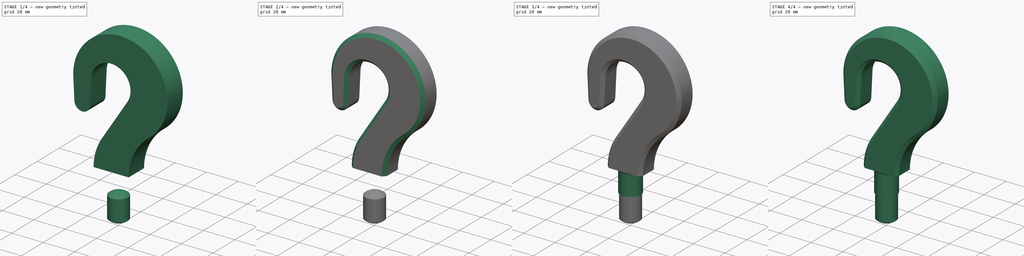
[diagram: build sequence overview — one tinted view per stage of 4, left to right]
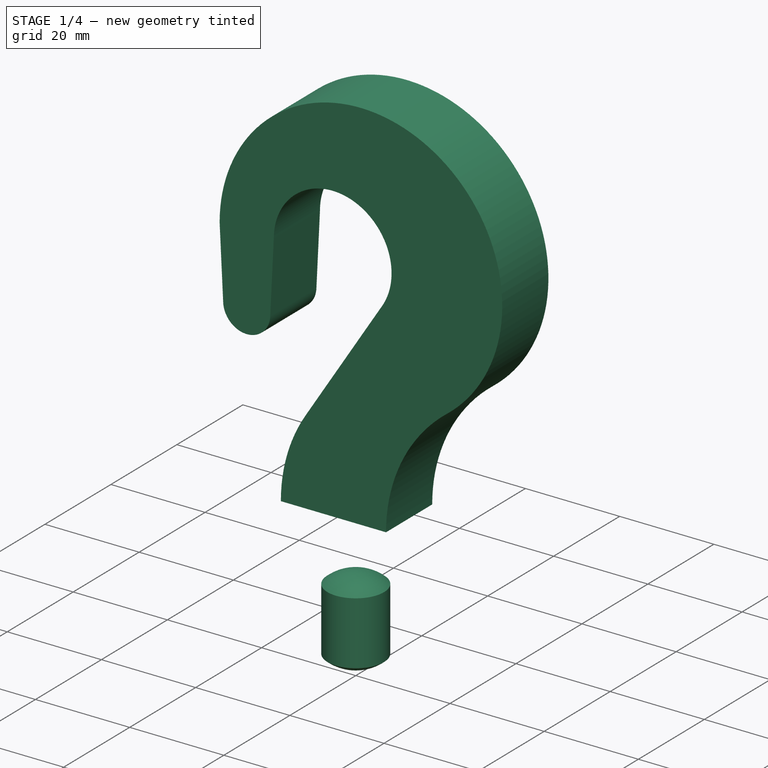
[diagram: stage 1 of 4 — iso view after this stage's code; geometry added in this stage tinted green]
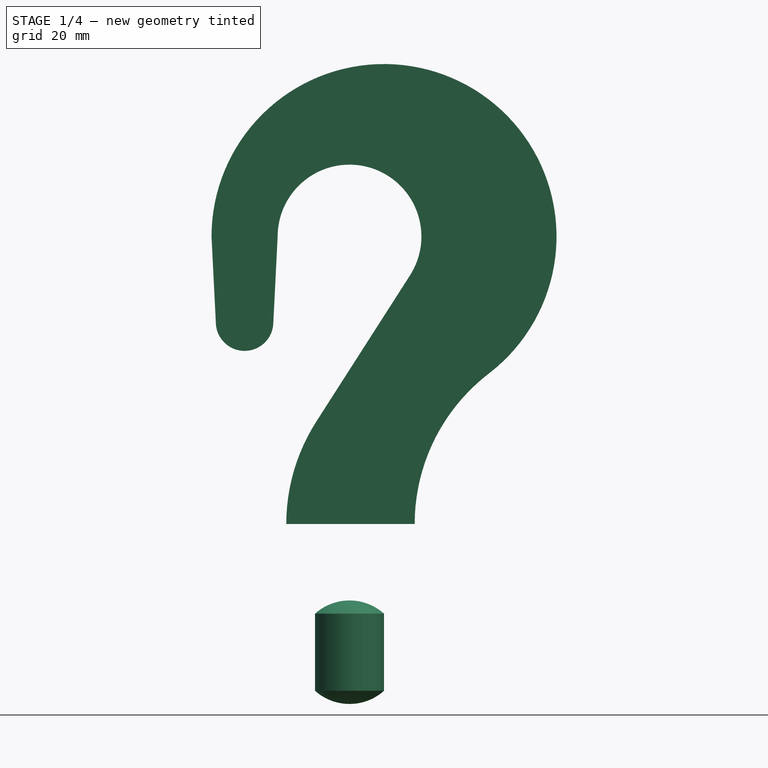
[diagram: stage 1 of 4 — front view after this stage's code; geometry added in this stage tinted green]
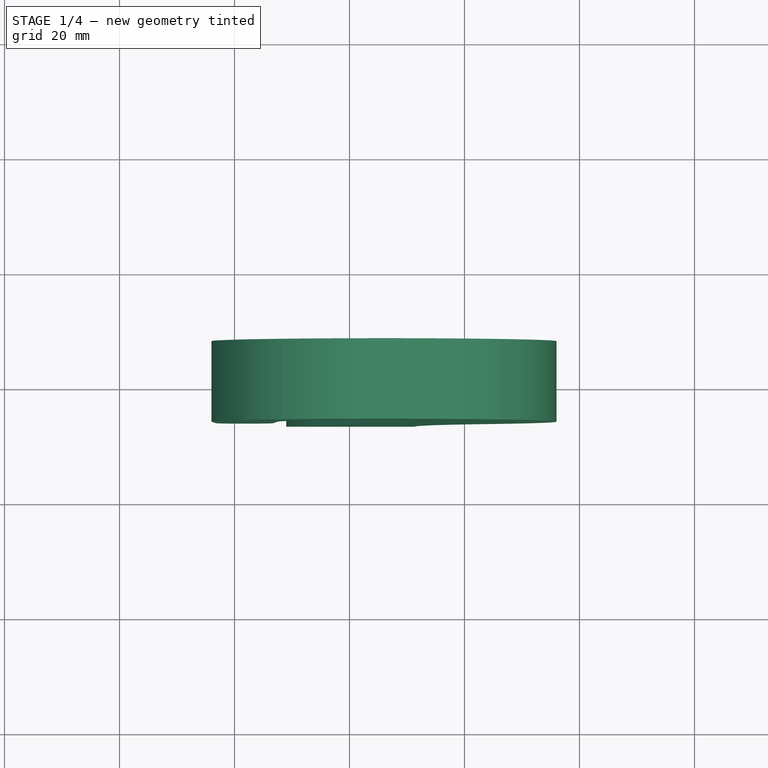
[diagram: stage 1 of 4 — top view after this stage's code; geometry added in this stage tinted green]
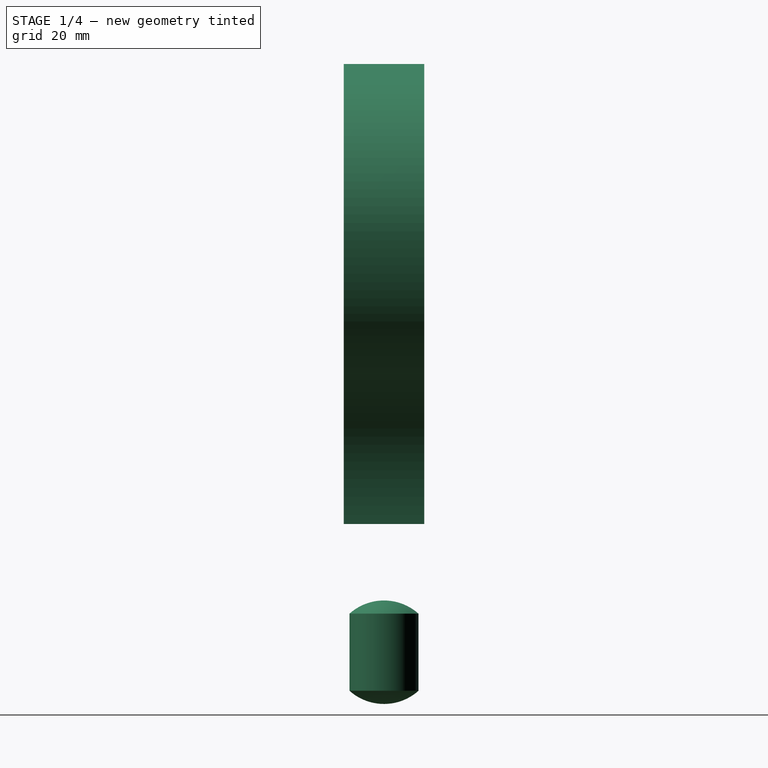
[diagram: stage 1 of 4 — right view after this stage's code; geometry added in this stage tinted green]
FCSTD DOCUMENT  (FreeCAD 0.16RUnknown)
Label: gancho
License: All rights reserved
LicenseURL: http://en.wikipedia.org/wiki/All_rights_reserved
objects: Sketcher::SketchObject×4, PartDesign::Pad×3, PartDesign::Chamfer×2, PartDesign::Fillet×2, PartDesign::Revolution×1, Part::MultiFuse×1
note: 17 computed .brp shape members not serialized (recipe doc carries the construction recipe); baked Part::Feature solids carry a one-line shape summary decoded from their .brp

FEATURE [Sketcher::SketchObject] Sketch
  Placement = pos=(0,0,0) rot=(-1,0,0;4.71239rad)
  sketch-geometry (12):
    g0: ArcOfCircle CenterX=0 CenterY=0 CenterZ=0 NormalX=0 NormalY=0 NormalZ=1 Radius=12.5 StartAngle=5.7133 EndAngle=9.42478
    g1: ArcOfCircle CenterX=-18.25 CenterY=-14.8851 CenterZ=0 NormalX=0 NormalY=0 NormalZ=1 Radius=5 StartAngle=3.16081 EndAngle=6.26397
    g2: LineSegment StartX=-12.5 StartY=0 StartZ=0 EndX=-13.2509 EndY=-14.9812 EndZ=0
    g3: LineSegment StartX=-24 StartY=0 StartZ=0 EndX=-23.2491 EndY=-14.9812 EndZ=0
    g4: LineSegment [constr] StartX=-18.25 StartY=3.40745 StartZ=0 EndX=-18.25 EndY=-26.7021 EndZ=0
    g5: LineSegment [constr] StartX=11.33 StartY=-50 StartZ=0 EndX=61.6107 EndY=-50 EndZ=0
    g6: ArcOfCircle CenterX=22 CenterY=-50 CenterZ=0 NormalX=0 NormalY=0 NormalZ=1 Radius=33 StartAngle=2.57171 EndAngle=3.14159
    g7: LineSegment StartX=-11 StartY=-50 StartZ=0 EndX=11.33 EndY=-50 EndZ=0
    g8: LineSegment StartX=-5.78475 StartY=-32.1953 StartZ=0 EndX=10.5245 EndY=-6.74421 EndZ=0
    g9: ArcOfCircle CenterX=6 CenterY=0 CenterZ=0 NormalX=0 NormalY=0 NormalZ=1 Radius=30 StartAngle=5.37333 EndAngle=9.42478
    g10: ArcOfCircle CenterX=44.33 CenterY=-50 CenterZ=0 NormalX=0 NormalY=0 NormalZ=1 Radius=33 StartAngle=2.23174 EndAngle=3.14159
    g11: LineSegment StartX=24.0726 StartY=-23.9493 StartZ=0 EndX=24.4158 EndY=-23.6825 EndZ=0
  constraints (37):
    c: Coincident(g0,g-1)
    c: Radius(g0) = 12.5
    c: Coincident(g0,g2)
    c: Coincident(g1,g2)
    c: Radius(g1) = 5
    c: Distance(g2) = 15
    c: Coincident(g3,g1)
    c: Distance(g3) = 15
    c: PointOnObject(g3,g-1)
    c: PointOnObject(g0,g-1)
    c: Vertical(g4)
    c: PointOnObject(g1,g4)
    c: Symmetric(g0,g3,g4)
    c: DistanceY(g5,g-1) = 50
    c: Horizontal(g5)
    c: PointOnObject(g6,g5)
    c: DistanceX(g-1,g6) = 22
    c: Radius(g6) = 33
    c: Horizontal(g7)
    c: Coincident(g7,g6)
    c: DistanceY(g7,g-1) = 50
    c: Coincident(g8,g6)
    c: Coincident(g8,g0)
    c: Tangent(g6,g8)
    c: Tangent(g8,g0)
    c: PointOnObject(g9,g-1)
    c: Coincident(g3,g9)
    c: Radius(g9) = 30
    c: DistanceX(g-1,g9) = 6
    c: PointOnObject(g10,g5)
    c: Radius(g10) = 33
    c: DistanceX(g6,g10) = 22.33
    c: Coincident(g5,g10)
    c: Coincident(g9,g11)
    c: Coincident(g10,g11)
    c: Tangent(g9,g11)
    c: Tangent(g10,g11)
FEATURE [PartDesign::Pad] Pad
  Length = 14
  Length2 = 100
  Midplane = true
  Placement = pos=(0,0,0) rot=(-1,0,0;4.71239rad)
  Sketch = -> Sketch
  Type = 0
FEATURE [Sketcher::SketchObject] Sketch003
  Placement = pos=(0,0,0) rot=(-1,0,0;4.71239rad)
  sketch-geometry (5):
    g0: LineSegment StartX=0 StartY=-63.2918 StartZ=0 EndX=0 EndY=-81.2918 EndZ=0
    g1: ArcOfCircle CenterX=0 CenterY=-72.2918 CenterZ=0 NormalX=0 NormalY=0 NormalZ=1 Radius=9 StartAngle=4.71239 EndAngle=5.44212
    g2: LineSegment [constr] StartX=-6 StartY=-79 StartZ=0 EndX=6 EndY=-79 EndZ=0
    g3: LineSegment StartX=6 StartY=-65.5836 StartZ=0 EndX=6 EndY=-79 EndZ=0
    g4: ArcOfCircle CenterX=0 CenterY=-72.2918 CenterZ=0 NormalX=0 NormalY=0 NormalZ=1 Radius=9 StartAngle=0.841069 EndAngle=1.5708
  constraints (15):
    c: PointOnObject(g0,g-2)
    c: PointOnObject(g0,g-2)
    c: PointOnObject(g1,g0)
    c: Coincident(g1,g0)
    c: Coincident(g4,g0)
    c: Radius(g1) = 9
    c: Horizontal(g2)
    c: DistanceY(g2,g-1) = 79
    c: DistanceX(g2,g3) = 12
    c: PointOnObject(g3,g1)
    c: Vertical(g3)
    c: Equal(g1,g4)
    c: Coincident(g1,g2)
    c: Coincident(g4,g3)
    c: Coincident(g1,g4)
FEATURE [PartDesign::Revolution] Revolution
  Angle = 360
  Axis = (0,0,1)
  Base = (0,0,0)
  Placement = pos=(0,0,0) rot=(-1,0,0;4.71239rad)
  ReferenceAxis = -> Sketch003 [V_Axis]
  Reversed = true
  Sketch = -> Sketch003
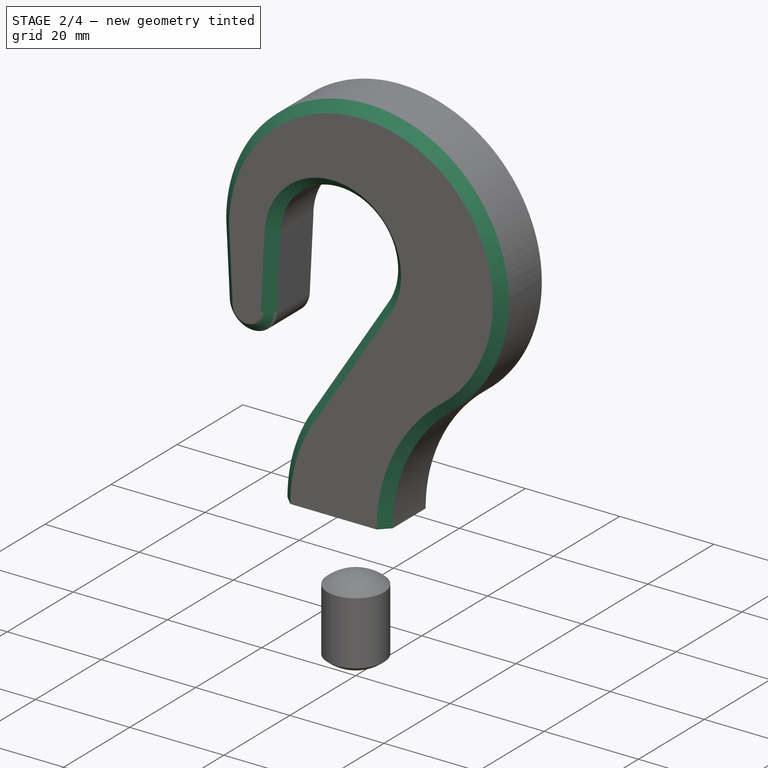
[diagram: stage 2 of 4 — iso view after this stage's code; geometry added in this stage tinted green]
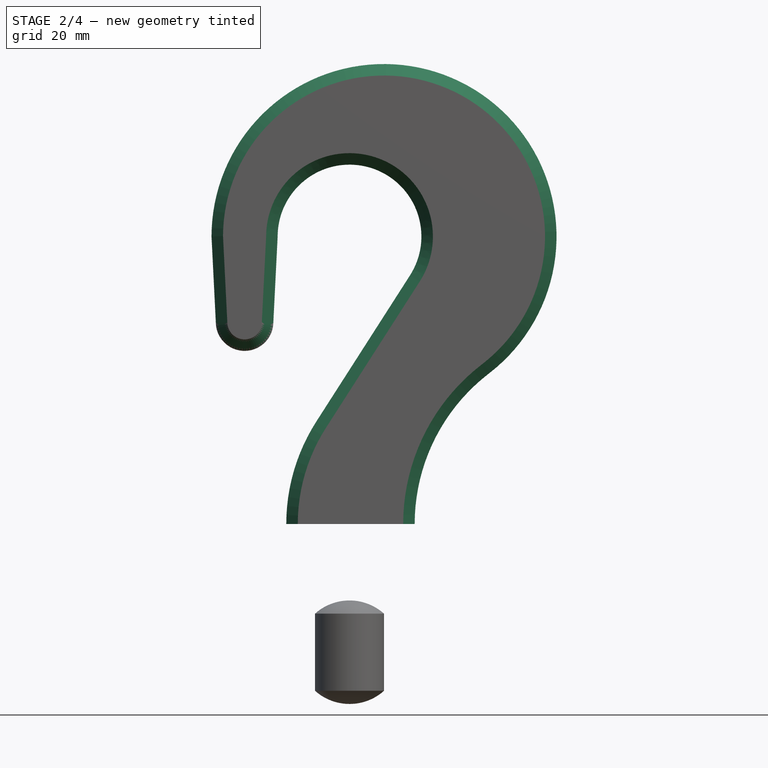
[diagram: stage 2 of 4 — front view after this stage's code; geometry added in this stage tinted green]
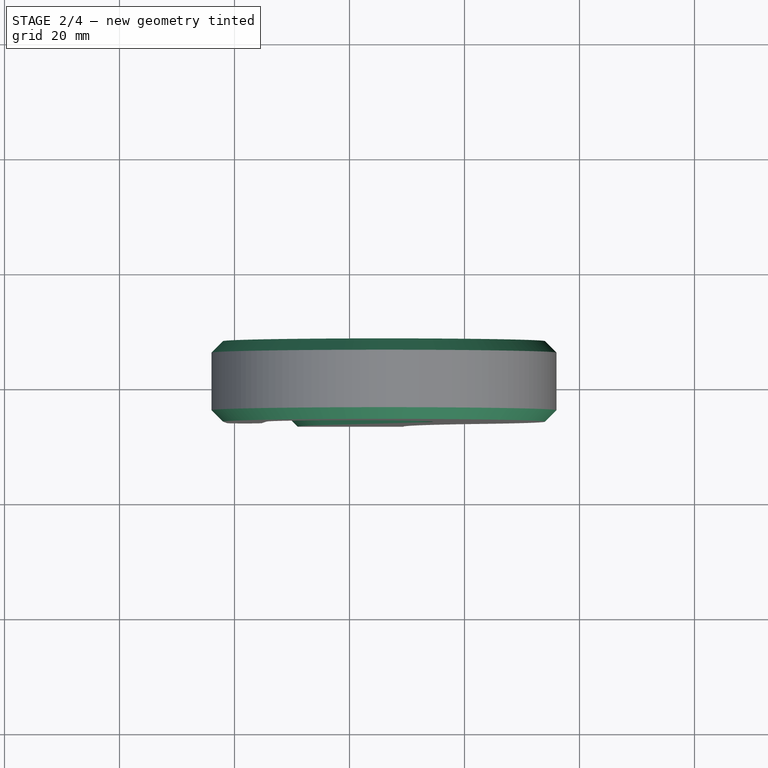
[diagram: stage 2 of 4 — top view after this stage's code; geometry added in this stage tinted green]
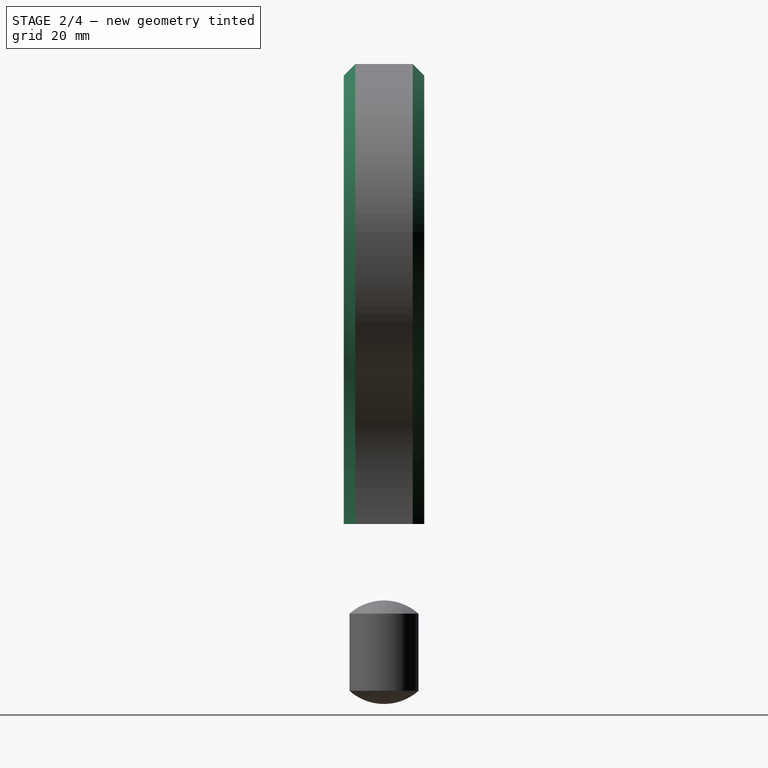
[diagram: stage 2 of 4 — right view after this stage's code; geometry added in this stage tinted green]
FEATURE [PartDesign::Chamfer] Chamfer
  Base = -> Pad [Edge7]
  Placement = pos=(0,0,0) rot=(-1,0,0;4.71239rad)
  Size = 2
FEATURE [PartDesign::Chamfer] Chamfer001
  Base = -> Chamfer [Edge15]
  Placement = pos=(0,0,0) rot=(-1,0,0;4.71239rad)
  Size = 2
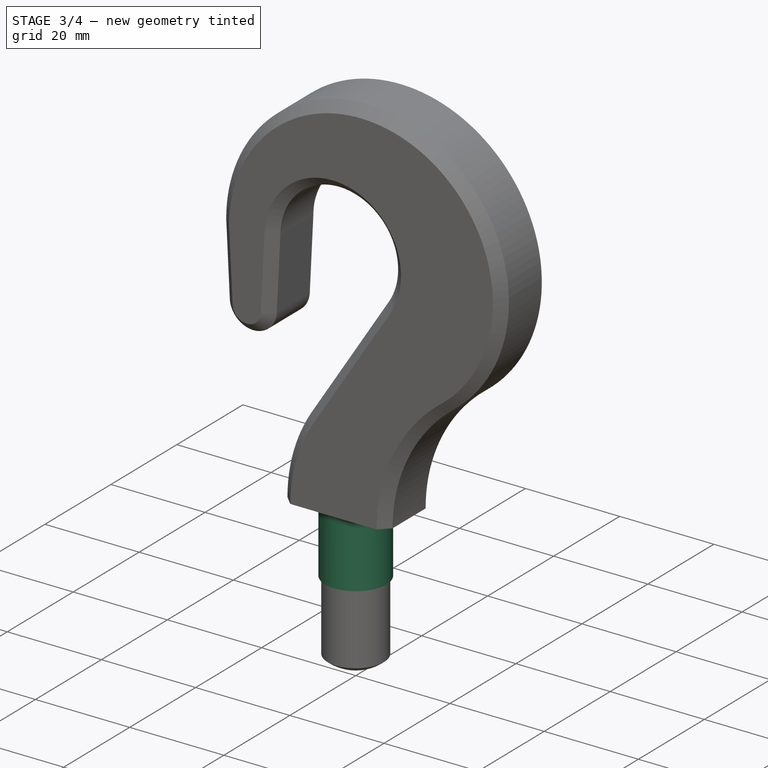
[diagram: stage 3 of 4 — iso view after this stage's code; geometry added in this stage tinted green]
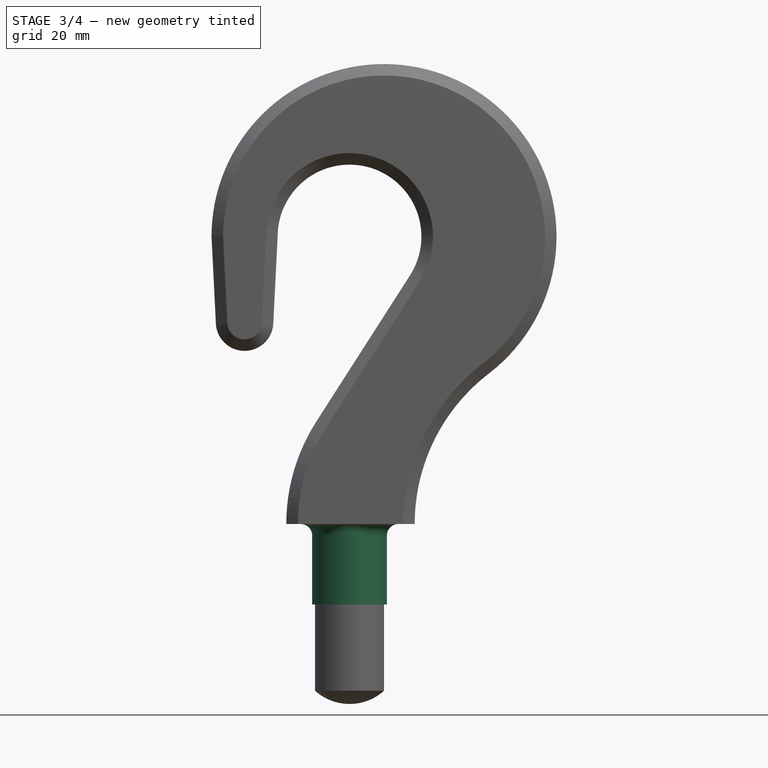
[diagram: stage 3 of 4 — front view after this stage's code; geometry added in this stage tinted green]
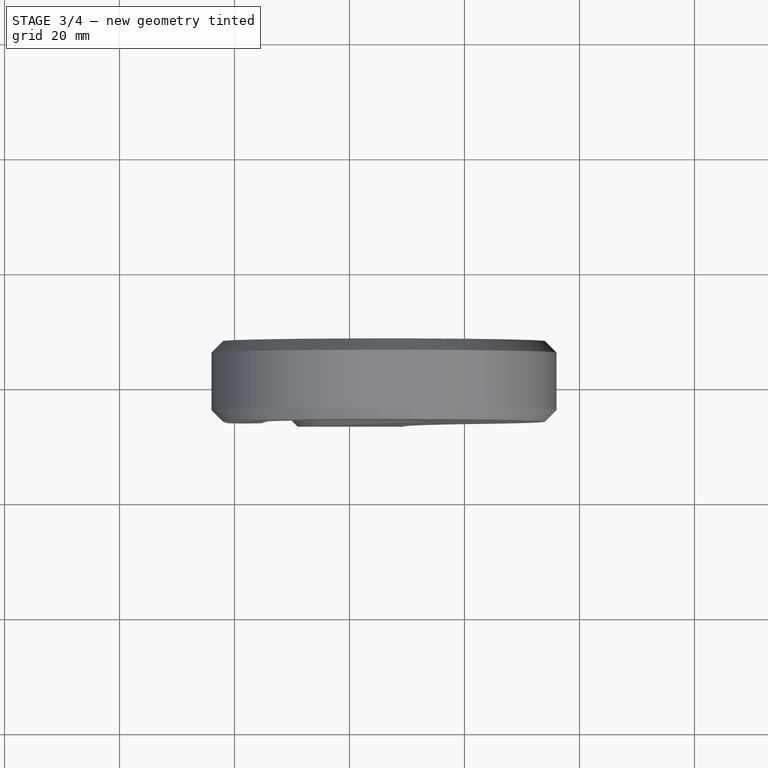
[diagram: stage 3 of 4 — top view after this stage's code; geometry added in this stage tinted green]
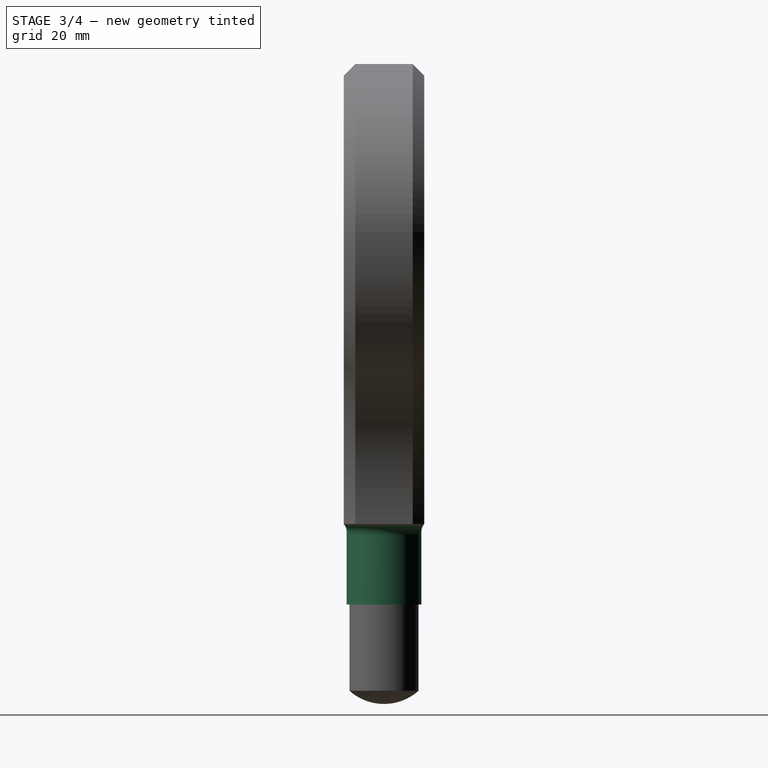
[diagram: stage 3 of 4 — right view after this stage's code; geometry added in this stage tinted green]
FEATURE [Sketcher::SketchObject] Sketch001
  Placement = pos=(0,0,-50) rot=(1,0,0;3.14159rad)
  Support = -> Chamfer001 [Face8]
  sketch-geometry (1):
    g0: Circle CenterX=0 CenterY=0 CenterZ=0 NormalX=0 NormalY=0 NormalZ=1 Radius=6.5
  constraints (2):
    c: Coincident(g0,g-1)
    c: Radius(g0) = 6.5
FEATURE [PartDesign::Pad] Pad001
  Length = 14
  Length2 = 100
  Placement = pos=(0,0,0) rot=(-1,0,0;4.71239rad)
  Sketch = -> Sketch001
  Type = 0
FEATURE [PartDesign::Fillet] Fillet
  Base = -> Pad001 [Edge2]
  Placement = pos=(0,0,0) rot=(-1,0,0;4.71239rad)
  Radius = 2
FEATURE [Sketcher::SketchObject] Sketch002
  Placement = pos=(0,0,-64) rot=(1,0,0;3.14159rad)
  Support = -> Fillet [Face3]
  sketch-geometry (1):
    g0: Circle CenterX=0 CenterY=0 CenterZ=0 NormalX=0 NormalY=0 NormalZ=1 Radius=6
  constraints (2):
    c: Coincident(g0,g-1)
    c: Radius(g0) = 6
FEATURE [PartDesign::Pad] Pad002
  Length = 15
  Length2 = 100
  Placement = pos=(0,0,0) rot=(-1,0,0;4.71239rad)
  Sketch = -> Sketch002
  Type = 0
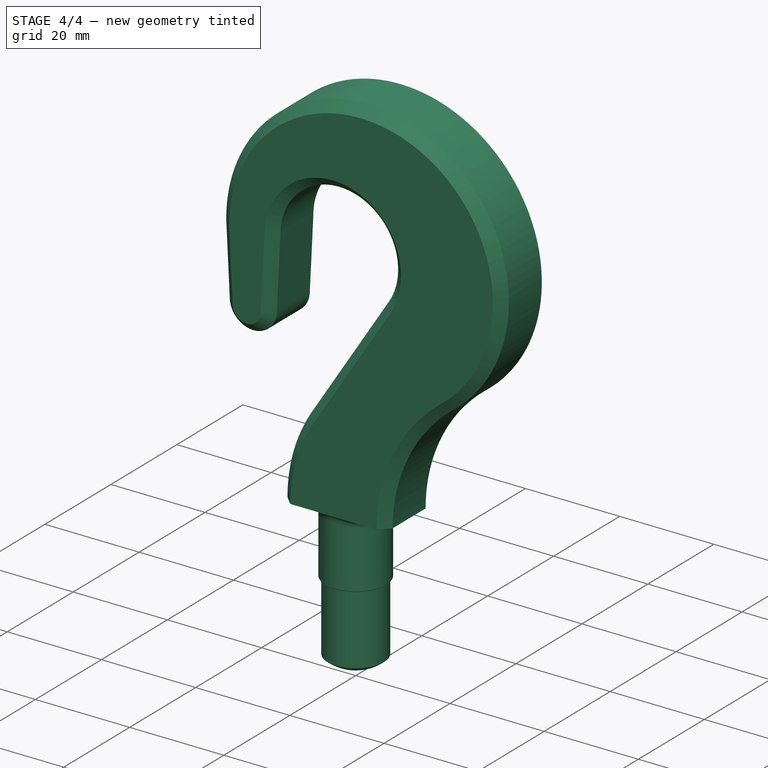
[diagram: stage 4 of 4 — iso view after this stage's code; geometry added in this stage tinted green]
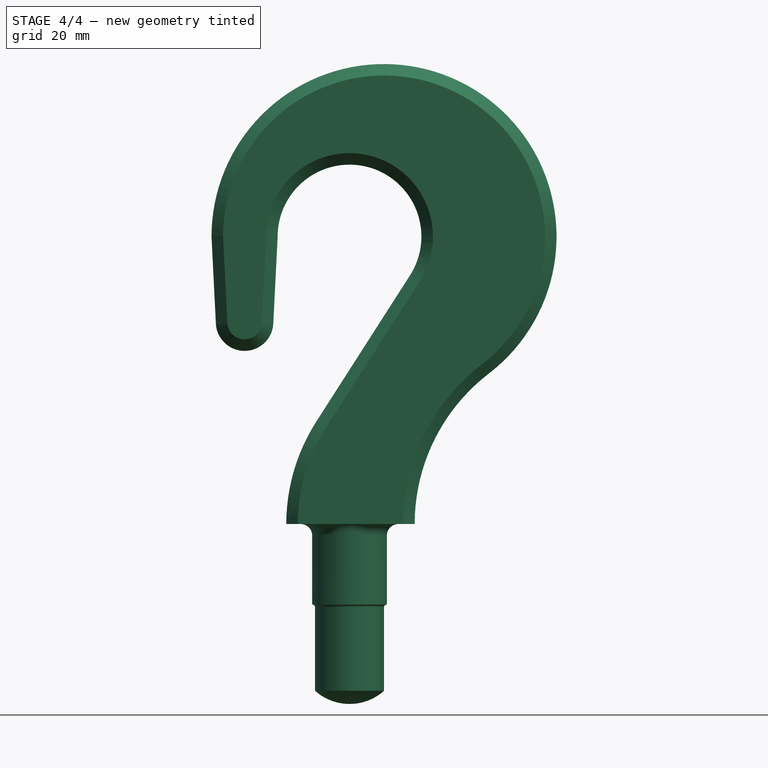
[diagram: stage 4 of 4 — front view after this stage's code; geometry added in this stage tinted green]
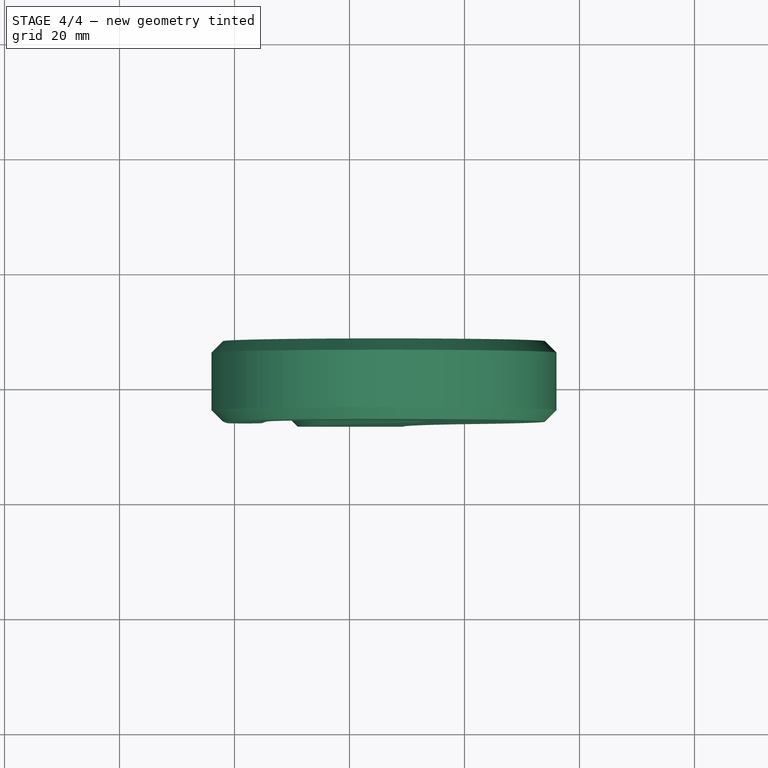
[diagram: stage 4 of 4 — top view after this stage's code; geometry added in this stage tinted green]
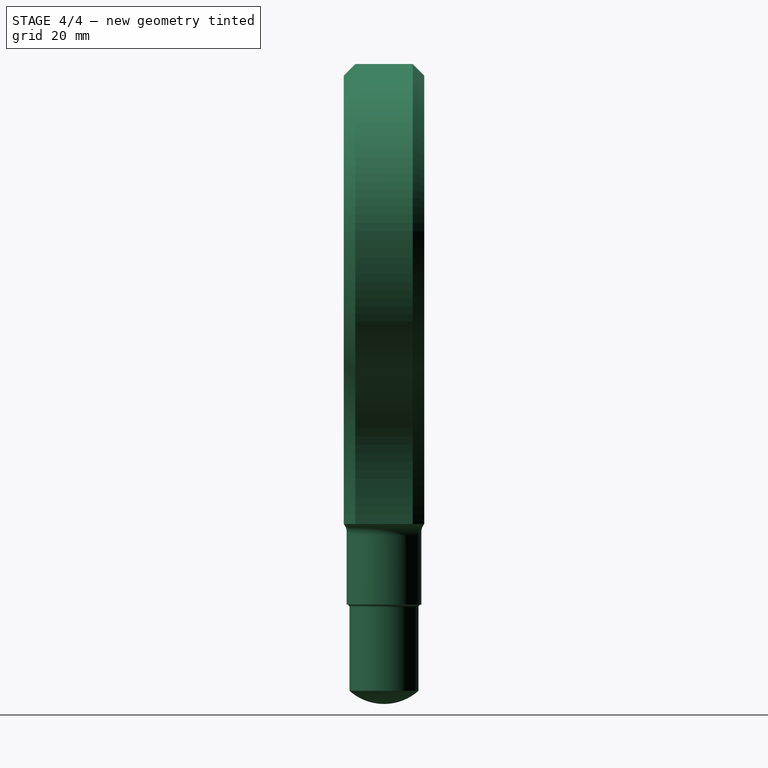
[diagram: stage 4 of 4 — right view after this stage's code; geometry added in this stage tinted green]
FEATURE [Part::MultiFuse] Fusion
  Shapes = -> [Revolution,Pad002]
FEATURE [PartDesign::Fillet] Fillet001
  Base = -> Fusion [Edge2]
  Radius = 0.48
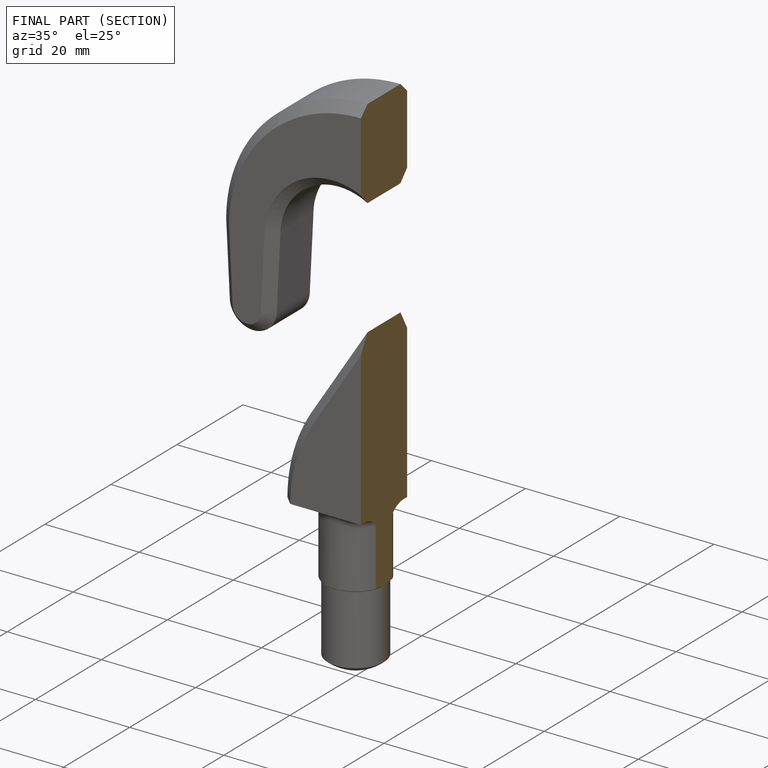
[diagram: finished part — half-section view (interior)]
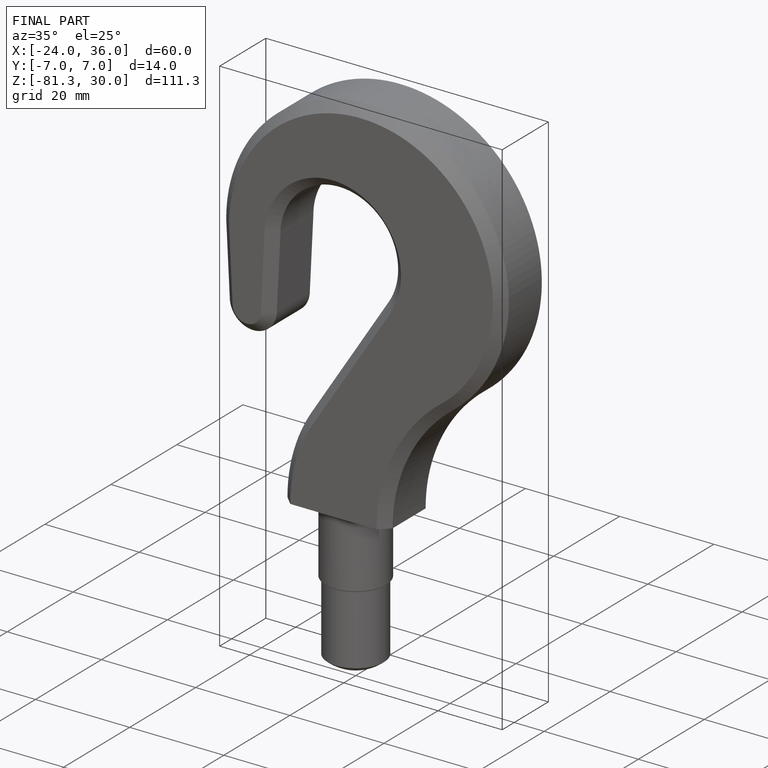
[diagram: finished part — iso view with bounding-box wireframe]
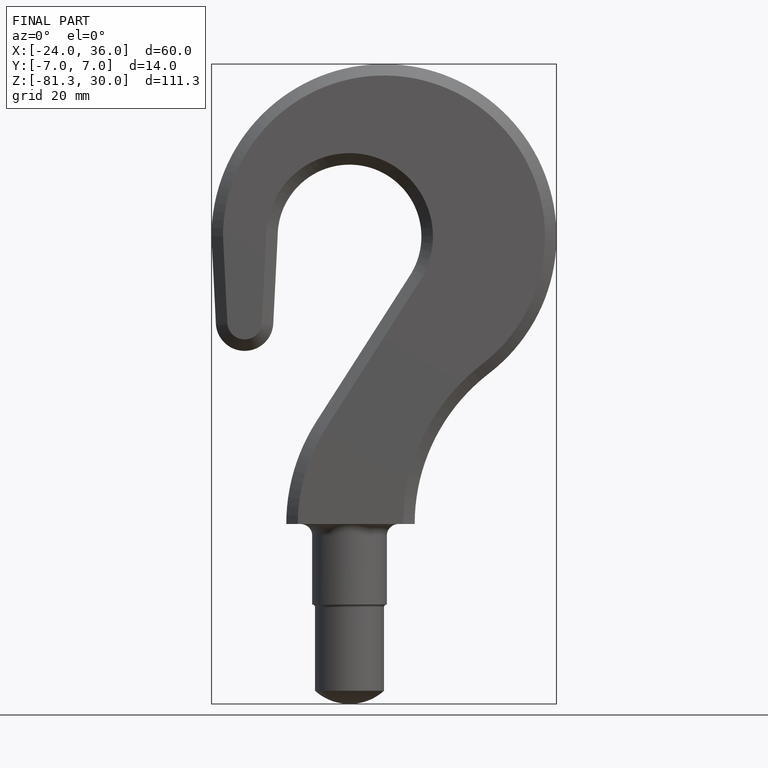
[diagram: finished part — front view with bounding-box wireframe]
